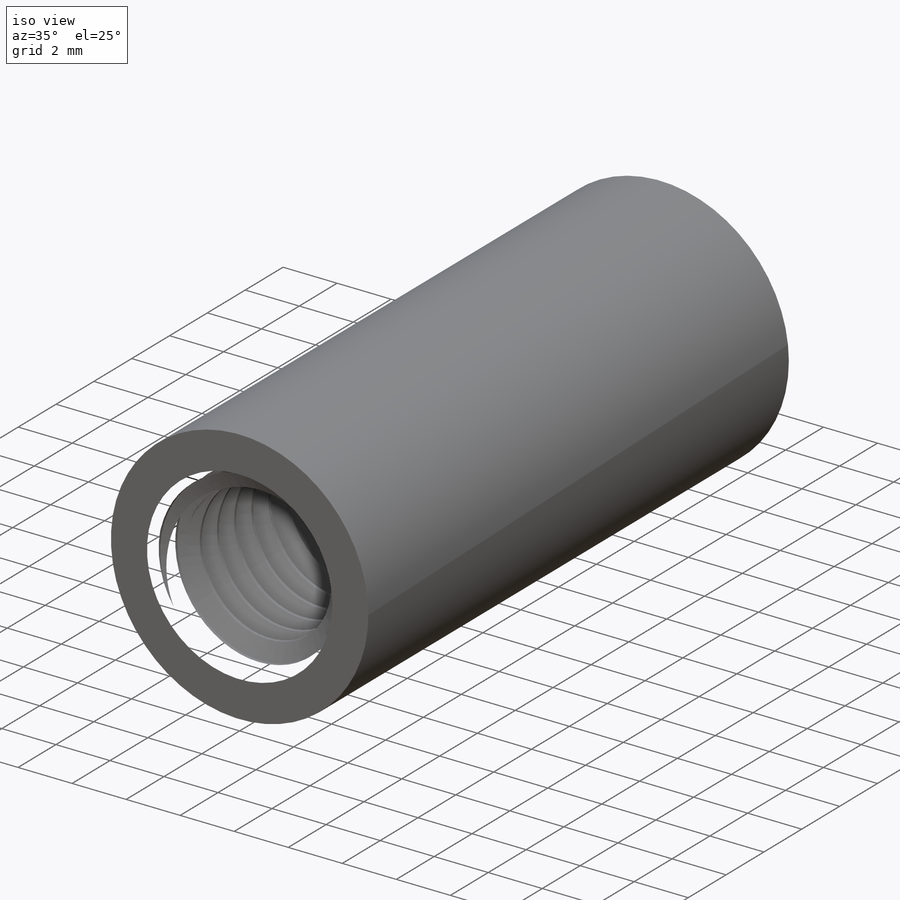
[diagram: iso view]
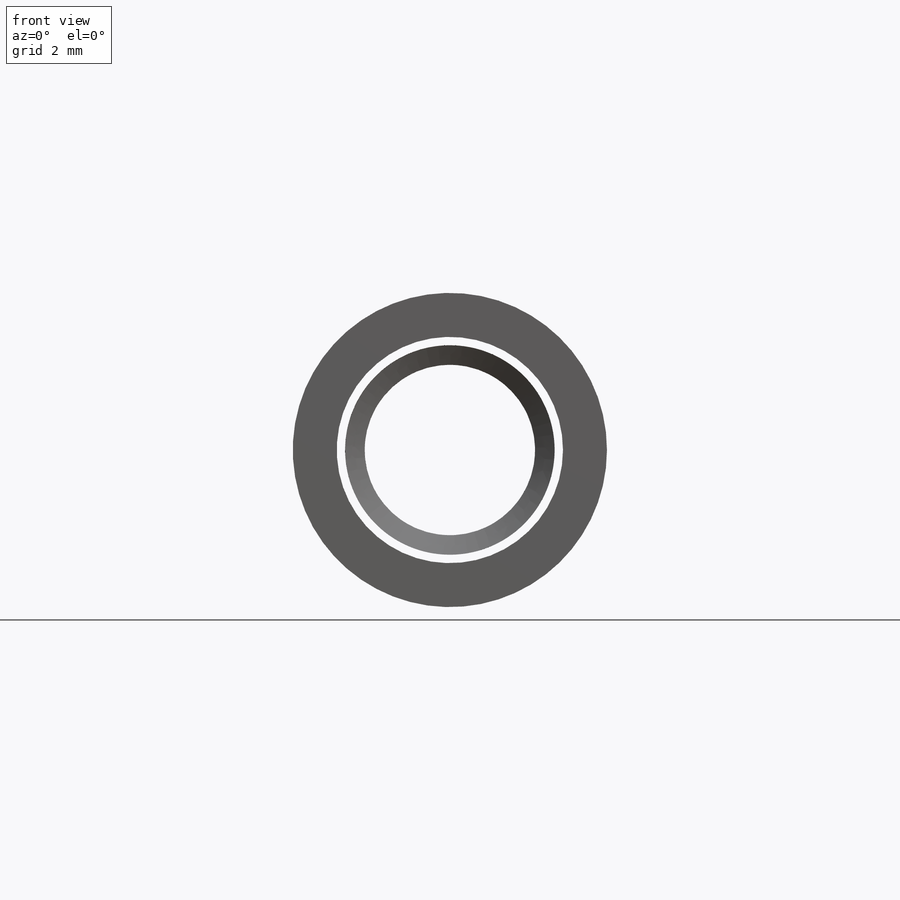
[diagram: front view]
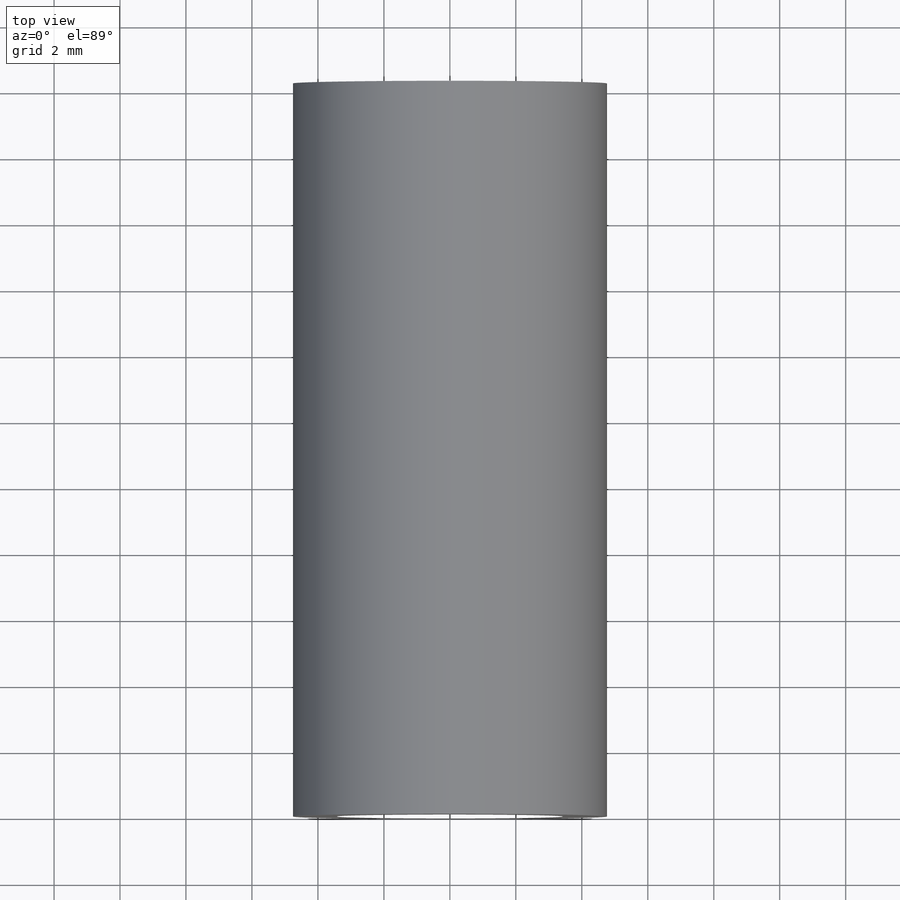
[diagram: top view]
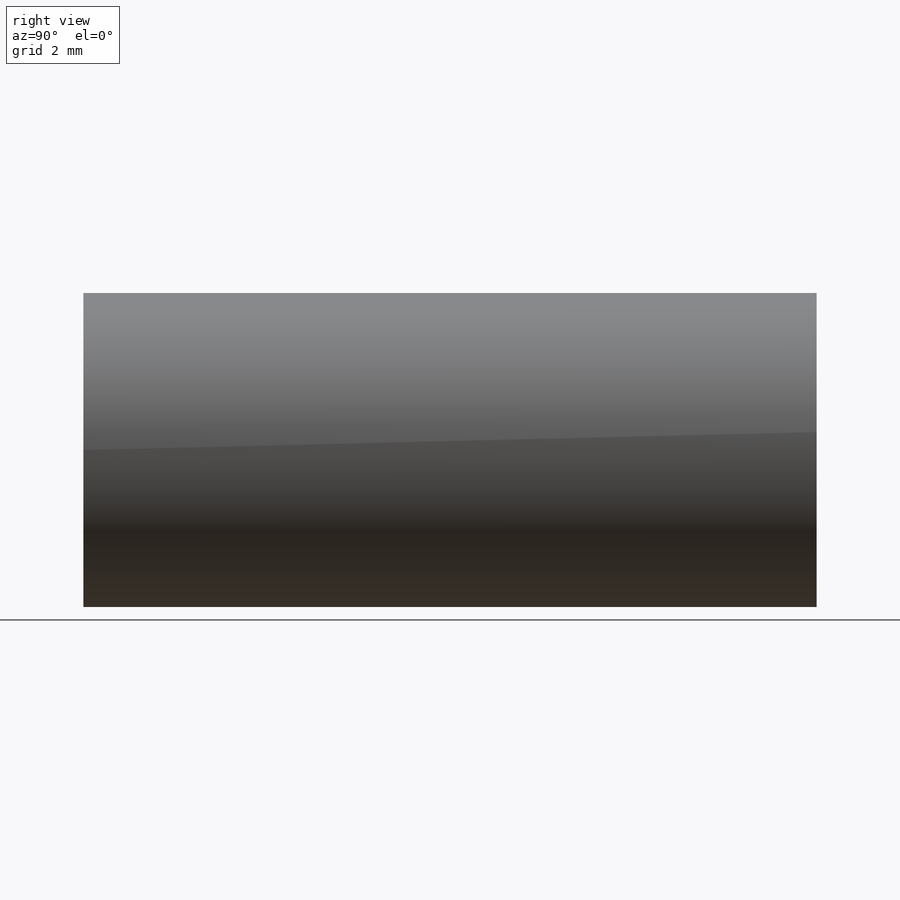
[diagram: right view]
SOLIDWORKS PART (.sldprt)
format: sldprt  version: not decoded by parser v0  size: 983,552 bytes
history: native  units: mm
features: sketch x9, cut_extrude x5, extrude x2, material x1, helix x1, sweep x1 (+14 scaffold rows collapsed)
feature tree (33):
  scaffold x14  (default folders/planes/origin — collapsed)
  material  "Material <not specified>"
  sketch  "Sketch1"  dims[Hex=9.525mm]
  extrude  "Extrude1"  Depth=22.225mm Height=22.225mm
  sketch  "Sketch2"
  cut_extrude  "Cut-Extrude1"  [1 undecoded]
  sketch  "Sketch3"  dims[D1=0.0mm]
  cut_extrude  "Cut-Extrude2"  [1 undecoded]
  sketch  "Sketch4"  dims[Thread Dia=6.35mm]
  cut_extrude  "Cut-Extrude3"  [1 undecoded]
  sketch  "Sketch7"  dims[D1=0.254mm]
  sketch  "Sketch8"
  sketch  "Sketch5"
  helix  "Helix/Spiral1"  Pitch=23.132143mm pitch=0.907143mm
  sketch  "Sketch9"  dims[c1.D1=~2.869972mm c2.D1=60.0deg c2.D2=~0.198437mm c2.D3=1.5875mm c2.D4=4.7625mm c3.D1=~0.113393mm c3.D2=~0.453571mm c3.D3=~4.457664mm c4.D3=0.0625deg c5.D3=~4.457664mm c6.D3=60.0deg]
  sketch  "Sketch12"
  extrude  "Extrude2"  [1 undecoded]
  sweep  "Cut-Sweep1 1/4-28 threads"
  cut_extrude  "Cut-Extrude6"  [1 undecoded]
  cut_extrude  "Cut-Extrude7"  [1 undecoded]
decode coverage: 7 of 18 modeling features carry decoded parameters
note: ~ marks probable driven/reference dimensions
note: 6 parameter values undecoded
summary: no parameter record found for 6 features
note: suppression state not decoded; provenance and decode notes live in map.json
